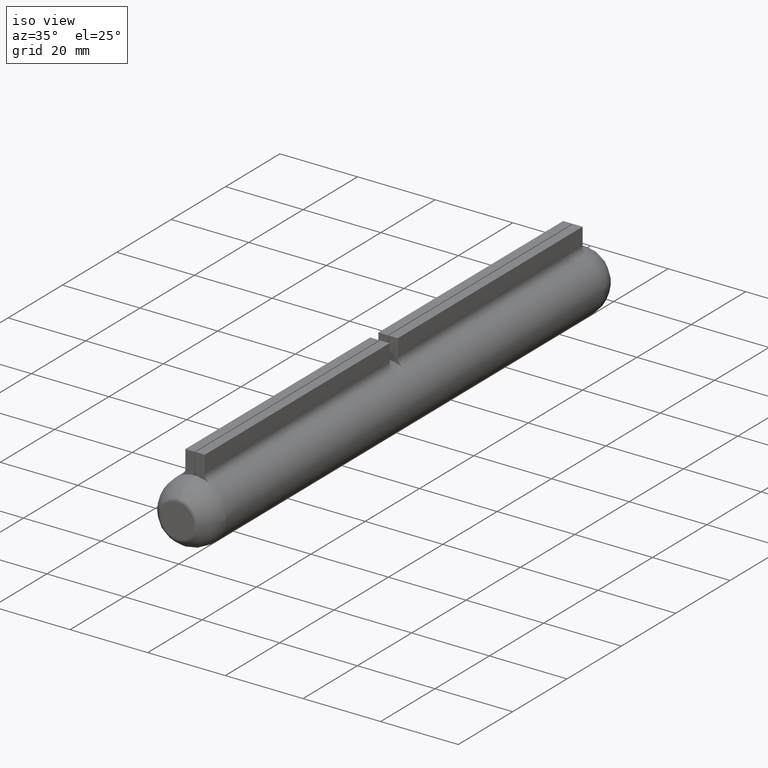
[diagram: clean part render]
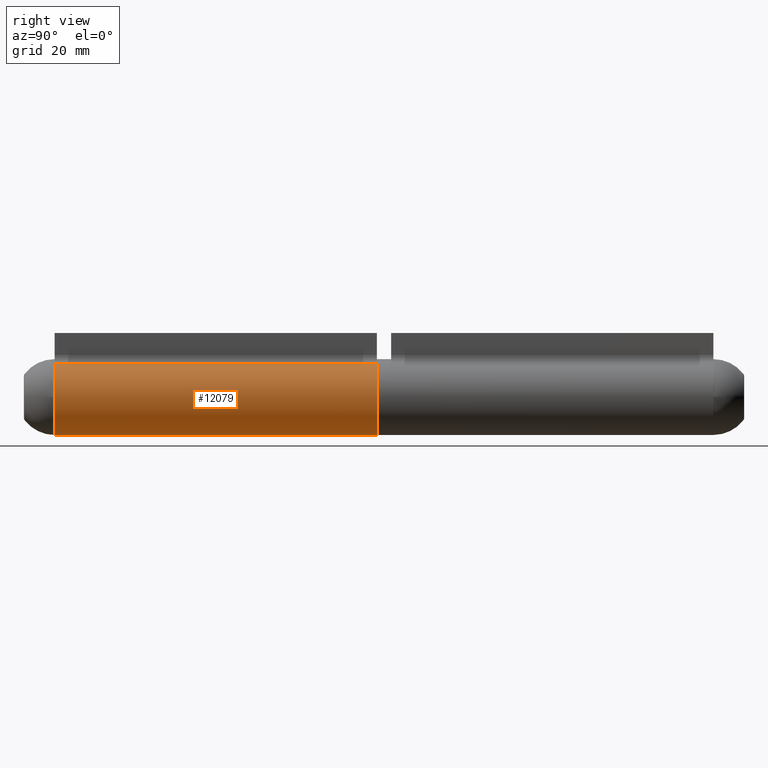
[diagram: tour spotlight — one face highlighted and labeled with its STEP entity id]
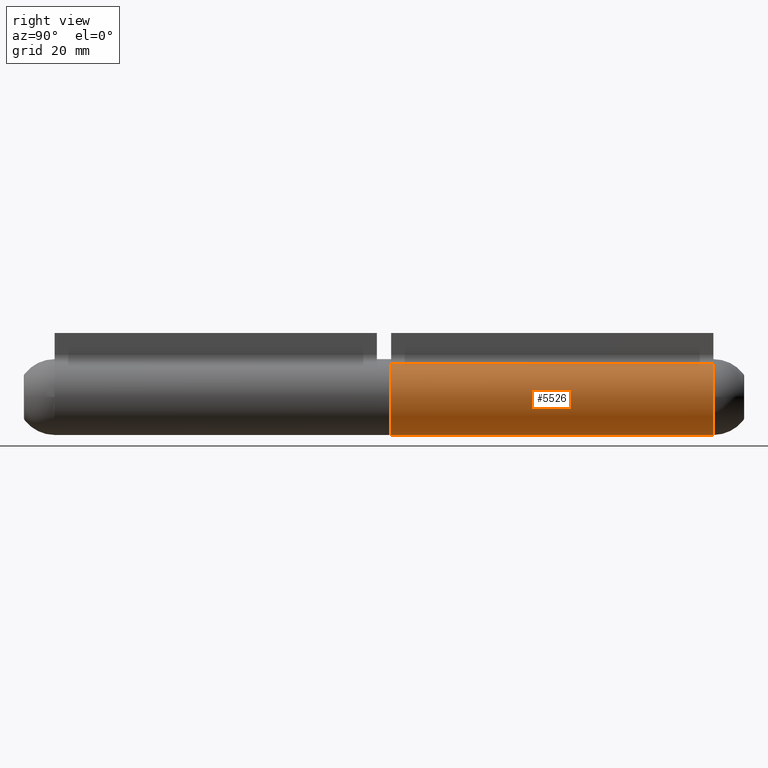
[diagram: tour spotlight — one face highlighted and labeled with its STEP entity id]
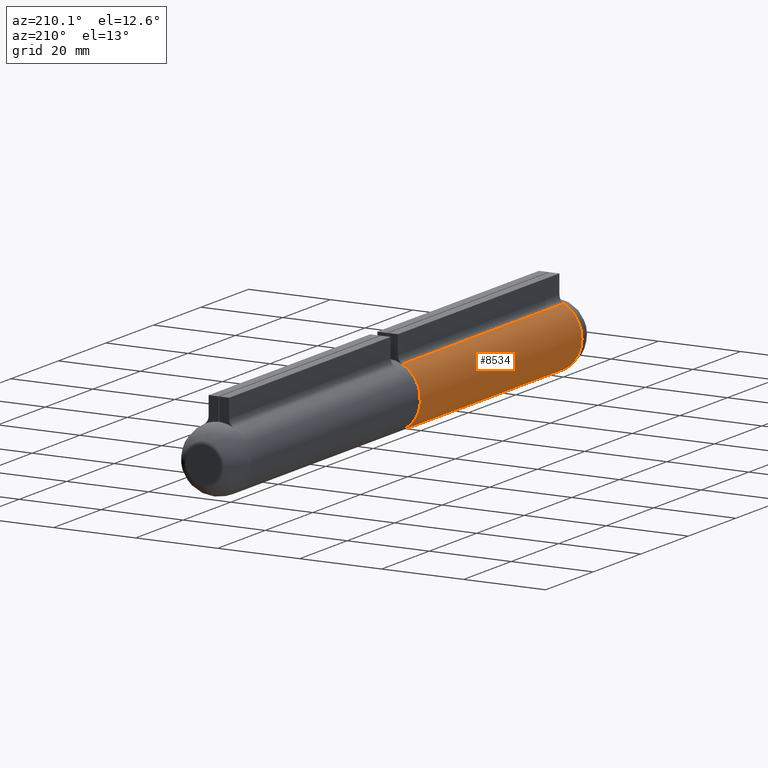
[diagram: tour spotlight — one face highlighted and labeled with its STEP entity id]
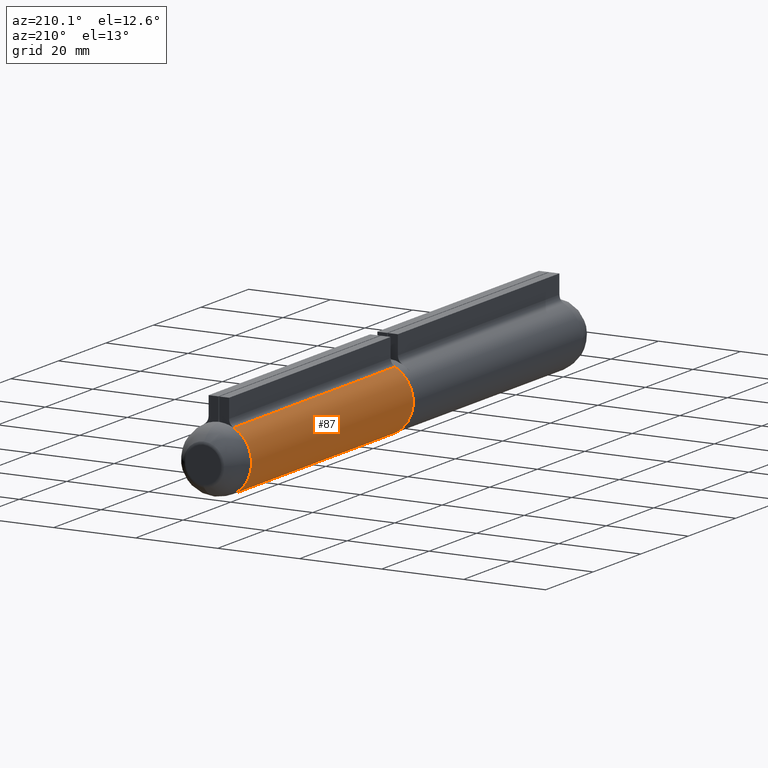
[diagram: tour spotlight — one face highlighted and labeled with its STEP entity id]
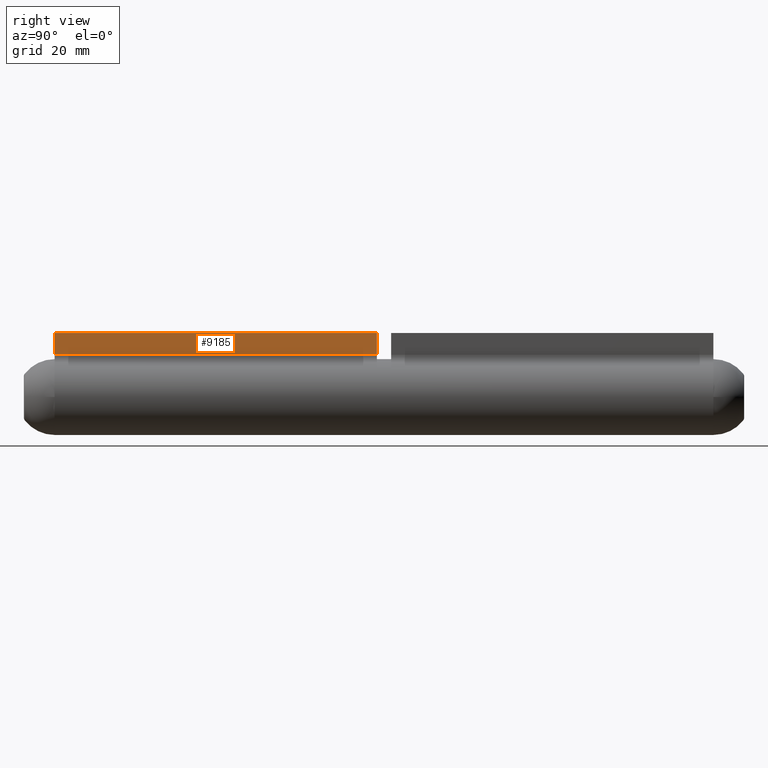
[diagram: tour spotlight — one face highlighted and labeled with its STEP entity id]
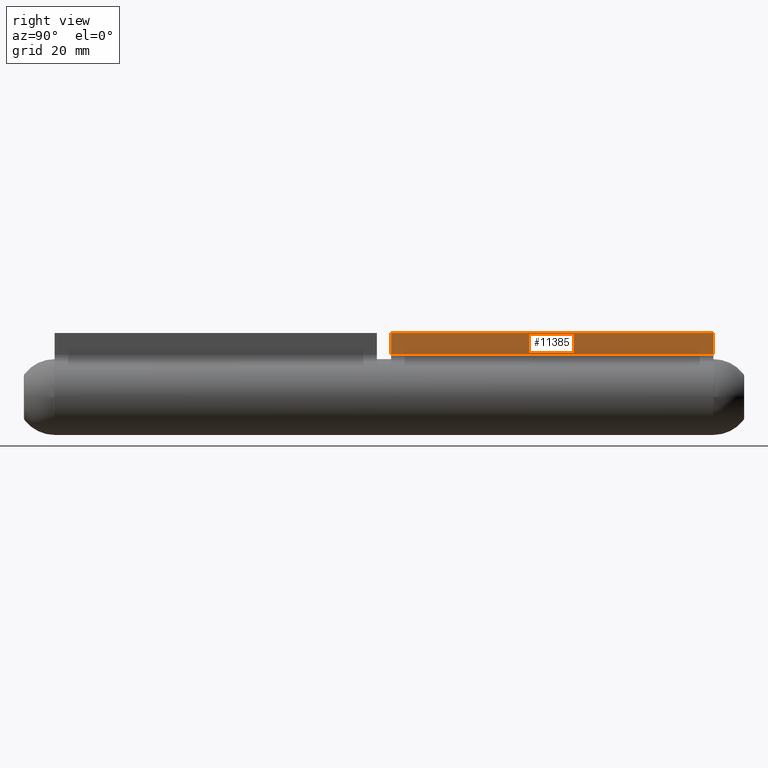
[diagram: tour spotlight — one face highlighted and labeled with its STEP entity id]
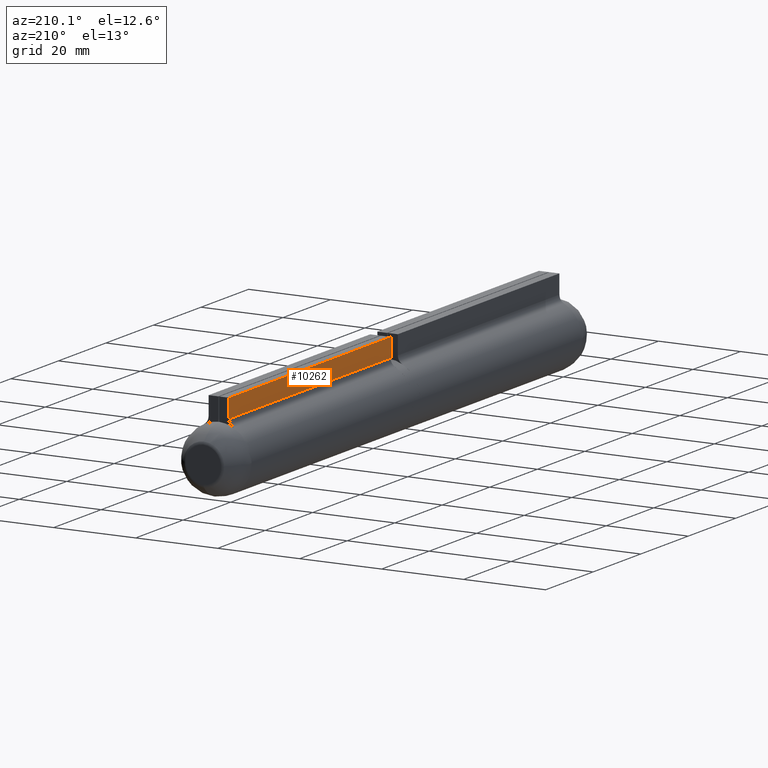
[diagram: tour spotlight — one face highlighted and labeled with its STEP entity id]
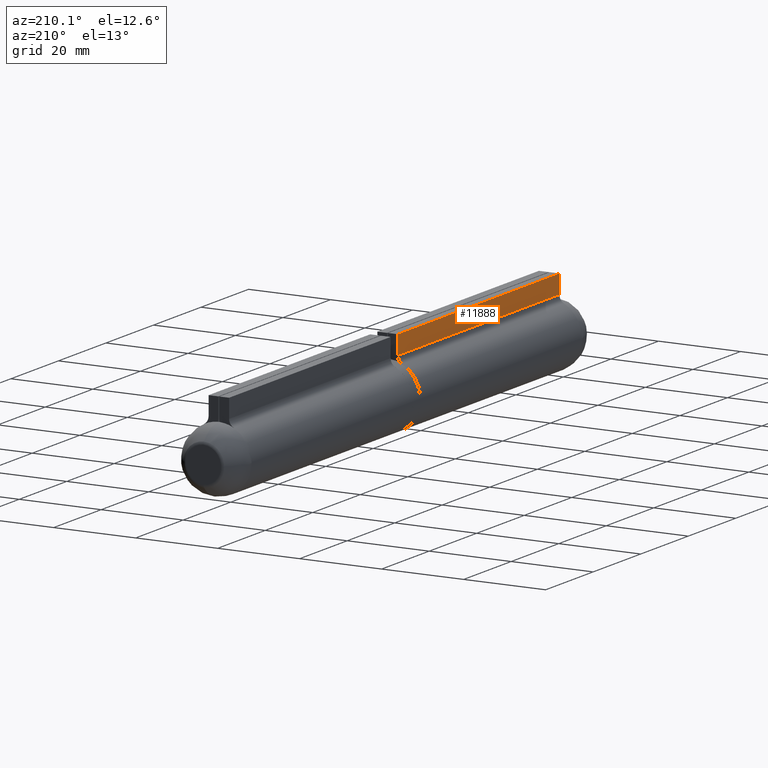
[diagram: tour spotlight — one face highlighted and labeled with its STEP entity id]
A machine part: a face-by-face anatomy tour. The part has 280 B-rep faces; the first image is the clean iso view, then the 8 largest visible faces are spotlighted one at a time (largest first), each with its STEP entity span.

Face 1 — right view, entity #12079. In plain terms, the highlighted cylindrical surface (partial cylindrical patch) has radius 8 mm, axis along (-0, -1, -0).
Definition (entity closure, byte-faithful):
#1317 = CARTESIAN_POINT ( 'NONE',  ( 0.000000000000000000, 34.00000000000000000, -7.999999999999998224 ) ) ;
#1640 = DIRECTION ( 'NONE',  ( 0.000000000000000000, 0.000000000000000000, -1.000000000000000000 ) ) ;
#1730 = VERTEX_POINT ( 'NONE', #11850 ) ;
#1923 = EDGE_LOOP ( 'NONE', ( #5000, #8132, #10654, #12706 ) ) ;
#3203 = EDGE_CURVE ( 'NONE', #1730, #7062, #5394, .T. ) ;
#3693 = CARTESIAN_POINT ( 'NONE',  ( 0.000000000000000000, 34.00000000000000000, 0.000000000000000000 ) ) ;
#3753 = DIRECTION ( 'NONE',  ( -0.000000000000000000, -1.000000000000000000, -0.000000000000000000 ) ) ;
#3789 = DIRECTION ( 'NONE',  ( -0.000000000000000000, -1.000000000000000000, -0.000000000000000000 ) ) ;
#3979 = LINE ( 'NONE', #10690, #5047 ) ;
#4450 = LINE ( 'NONE', #4731, #4927 ) ;
#4677 = CARTESIAN_POINT ( 'NONE',  ( 3.600000000000000089, 34.00000000000000000, 7.144228439796698638 ) ) ;
#4731 = CARTESIAN_POINT ( 'NONE',  ( 3.600000000000000089, 34.00000000000000000, 7.144228439796698638 ) ) ;
#4927 = VECTOR ( 'NONE', #3789, 1000.000000000000000 ) ;
#5000 = ORIENTED_EDGE ( 'NONE', *, *, #12190, .F. ) ;
#5047 = VECTOR ( 'NONE', #3753, 1000.000000000000000 ) ;
#5394 = CIRCLE ( 'NONE', #9211, 7.999999999999998224 ) ;
#5544 = DIRECTION ( 'NONE',  ( 0.000000000000000000, 0.000000000000000000, 1.000000000000000000 ) ) ;
#6123 = CARTESIAN_POINT ( 'NONE',  ( 0.000000000000000000, -34.00000000000000000, 0.000000000000000000 ) ) ;
#7062 = VERTEX_POINT ( 'NONE', #8725 ) ;
#8017 = CYLINDRICAL_SURFACE ( 'NONE', #8365, 7.999999999999998224 ) ;
#8132 = ORIENTED_EDGE ( 'NONE', *, *, #12448, .F. ) ;
#8365 = AXIS2_PLACEMENT_3D ( 'NONE', #11424, #8521, #1640 ) ;
#8420 = VERTEX_POINT ( 'NONE', #4677 ) ;
#8521 = DIRECTION ( 'NONE',  ( -0.000000000000000000, -1.000000000000000000, -0.000000000000000000 ) ) ;
#8675 = VERTEX_POINT ( 'NONE', #1317 ) ;
#8725 = CARTESIAN_POINT ( 'NONE',  ( 0.000000000000000000, -34.00000000000000000, -7.999999999999998224 ) ) ;
#9085 = CIRCLE ( 'NONE', #10563, 7.999999999999998224 ) ;
#9211 = AXIS2_PLACEMENT_3D ( 'NONE', #6123, #10923, #11925 ) ;
#9521 = DIRECTION ( 'NONE',  ( 0.000000000000000000, 1.000000000000000000, 0.000000000000000000 ) ) ;
#10563 = AXIS2_PLACEMENT_3D ( 'NONE', #3693, #9521, #5544 ) ;
#10654 = ORIENTED_EDGE ( 'NONE', *, *, #10925, .T. ) ;
#10690 = CARTESIAN_POINT ( 'NONE',  ( 0.000000000000000000, 34.00000000000000000, -7.999999999999998224 ) ) ;
#10923 = DIRECTION ( 'NONE',  ( 0.000000000000000000, 1.000000000000000000, 0.000000000000000000 ) ) ;
#10925 = EDGE_CURVE ( 'NONE', #8420, #1730, #4450, .T. ) ;
#10926 = FACE_OUTER_BOUND ( 'NONE', #1923, .T. ) ;
#11424 = CARTESIAN_POINT ( 'NONE',  ( 0.000000000000000000, 34.00000000000000000, 0.000000000000000000 ) ) ;
#11850 = CARTESIAN_POINT ( 'NONE',  ( 3.600000000000000089, -34.00000000000000000, 7.144228439796698638 ) ) ;
#11925 = DIRECTION ( 'NONE',  ( 0.000000000000000000, 0.000000000000000000, 1.000000000000000000 ) ) ;
#12079 = ADVANCED_FACE ( 'NONE', ( #10926 ), #8017, .T. ) ;
#12190 = EDGE_CURVE ( 'NONE', #8675, #7062, #3979, .T. ) ;
#12448 = EDGE_CURVE ( 'NONE', #8420, #8675, #9085, .T. ) ;
#12706 = ORIENTED_EDGE ( 'NONE', *, *, #3203, .T. ) ;

Face 2 — right view, entity #5526. In plain terms, the highlighted cylindrical surface (partial cylindrical patch) has radius 8 mm, axis along (-0, -1, -0).
Definition (entity closure, byte-faithful):
#41 = CIRCLE ( 'NONE', #7983, 7.999999999999998224 ) ;
#110 = CARTESIAN_POINT ( 'NONE',  ( 3.600000000000000089, 34.00000000000000000, 7.144228439796698638 ) ) ;
#111 = EDGE_CURVE ( 'NONE', #10241, #561, #41, .T. ) ;
#165 = CARTESIAN_POINT ( 'NONE',  ( 0.000000000000000000, 34.00000000000000000, 0.000000000000000000 ) ) ;
#184 = ORIENTED_EDGE ( 'NONE', *, *, #11705, .T. ) ;
#561 = VERTEX_POINT ( 'NONE', #8555 ) ;
#717 = VECTOR ( 'NONE', #8956, 1000.000000000000000 ) ;
#872 = LINE ( 'NONE', #6856, #717 ) ;
#1079 = DIRECTION ( 'NONE',  ( -0.000000000000000000, -1.000000000000000000, -0.000000000000000000 ) ) ;
#1162 = DIRECTION ( 'NONE',  ( 0.000000000000000000, 0.000000000000000000, 1.000000000000000000 ) ) ;
#1333 = CARTESIAN_POINT ( 'NONE',  ( 3.600000000000000089, -34.00000000000000000, 7.144228439796698638 ) ) ;
#1744 = DIRECTION ( 'NONE',  ( 0.000000000000000000, 1.000000000000000000, 0.000000000000000000 ) ) ;
#1974 = CIRCLE ( 'NONE', #7925, 7.999999999999998224 ) ;
#2167 = VECTOR ( 'NONE', #10861, 1000.000000000000000 ) ;
#2467 = FACE_OUTER_BOUND ( 'NONE', #3504, .T. ) ;
#2526 = EDGE_CURVE ( 'NONE', #561, #8944, #3264, .T. ) ;
#2726 = CARTESIAN_POINT ( 'NONE',  ( 0.000000000000000000, -34.00000000000000000, 0.000000000000000000 ) ) ;
#3089 = DIRECTION ( 'NONE',  ( 0.000000000000000000, 0.000000000000000000, -1.000000000000000000 ) ) ;
#3264 = LINE ( 'NONE', #9877, #2167 ) ;
#3504 = EDGE_LOOP ( 'NONE', ( #6454, #7977, #184, #5536 ) ) ;
#4755 = DIRECTION ( 'NONE',  ( 0.000000000000000000, 0.000000000000000000, 1.000000000000000000 ) ) ;
#5526 = ADVANCED_FACE ( 'NONE', ( #2467 ), #10662, .T. ) ;
#5536 = ORIENTED_EDGE ( 'NONE', *, *, #9980, .T. ) ;
#5545 = AXIS2_PLACEMENT_3D ( 'NONE', #8041, #1079, #3089 ) ;
#6454 = ORIENTED_EDGE ( 'NONE', *, *, #2526, .F. ) ;
#6856 = CARTESIAN_POINT ( 'NONE',  ( 3.600000000000000089, 34.00000000000000000, 7.144228439796698638 ) ) ;
#6900 = VERTEX_POINT ( 'NONE', #1333 ) ;
#7925 = AXIS2_PLACEMENT_3D ( 'NONE', #2726, #1744, #4755 ) ;
#7977 = ORIENTED_EDGE ( 'NONE', *, *, #111, .F. ) ;
#7983 = AXIS2_PLACEMENT_3D ( 'NONE', #165, #8026, #1162 ) ;
#8026 = DIRECTION ( 'NONE',  ( 0.000000000000000000, 1.000000000000000000, 0.000000000000000000 ) ) ;
#8041 = CARTESIAN_POINT ( 'NONE',  ( 0.000000000000000000, 34.00000000000000000, 0.000000000000000000 ) ) ;
#8555 = CARTESIAN_POINT ( 'NONE',  ( 0.000000000000000000, 34.00000000000000000, -7.999999999999998224 ) ) ;
#8944 = VERTEX_POINT ( 'NONE', #11599 ) ;
#8956 = DIRECTION ( 'NONE',  ( -0.000000000000000000, -1.000000000000000000, -0.000000000000000000 ) ) ;
#9877 = CARTESIAN_POINT ( 'NONE',  ( 0.000000000000000000, 34.00000000000000000, -7.999999999999998224 ) ) ;
#9980 = EDGE_CURVE ( 'NONE', #6900, #8944, #1974, .T. ) ;
#10241 = VERTEX_POINT ( 'NONE', #110 ) ;
#10662 = CYLINDRICAL_SURFACE ( 'NONE', #5545, 7.999999999999998224 ) ;
#10861 = DIRECTION ( 'NONE',  ( -0.000000000000000000, -1.000000000000000000, -0.000000000000000000 ) ) ;
#11599 = CARTESIAN_POINT ( 'NONE',  ( 0.000000000000000000, -34.00000000000000000, -7.999999999999998224 ) ) ;
#11705 = EDGE_CURVE ( 'NONE', #10241, #6900, #872, .T. ) ;

Face 3 — auxiliary view, entity #8534. In plain terms, the highlighted cylindrical surface (partial cylindrical patch) has radius 8 mm, axis along (-0, -1, -0).
Definition (entity closure, byte-faithful):
#154 = DIRECTION ( 'NONE',  ( 0.000000000000000000, 0.000000000000000000, 1.000000000000000000 ) ) ;
#567 = VECTOR ( 'NONE', #11546, 1000.000000000000000 ) ;
#1317 = CARTESIAN_POINT ( 'NONE',  ( 0.000000000000000000, 34.00000000000000000, -7.999999999999998224 ) ) ;
#1459 = CARTESIAN_POINT ( 'NONE',  ( -3.599999999999998757, -34.00000000000000000, 7.144228439796700414 ) ) ;
#2852 = VERTEX_POINT ( 'NONE', #9355 ) ;
#2926 = DIRECTION ( 'NONE',  ( 0.000000000000000000, 0.000000000000000000, 1.000000000000000000 ) ) ;
#3753 = DIRECTION ( 'NONE',  ( -0.000000000000000000, -1.000000000000000000, -0.000000000000000000 ) ) ;
#3792 = AXIS2_PLACEMENT_3D ( 'NONE', #11010, #6115, #154 ) ;
#3979 = LINE ( 'NONE', #10690, #5047 ) ;
#4285 = ORIENTED_EDGE ( 'NONE', *, *, #8672, .F. ) ;
#4331 = FACE_OUTER_BOUND ( 'NONE', #8909, .T. ) ;
#4486 = AXIS2_PLACEMENT_3D ( 'NONE', #7916, #11778, #2926 ) ;
#5047 = VECTOR ( 'NONE', #3753, 1000.000000000000000 ) ;
#5107 = CYLINDRICAL_SURFACE ( 'NONE', #9538, 7.999999999999998224 ) ;
#5887 = CIRCLE ( 'NONE', #4486, 7.999999999999998224 ) ;
#6115 = DIRECTION ( 'NONE',  ( 0.000000000000000000, 1.000000000000000000, 0.000000000000000000 ) ) ;
#6861 = DIRECTION ( 'NONE',  ( -0.000000000000000000, -1.000000000000000000, -0.000000000000000000 ) ) ;
#7062 = VERTEX_POINT ( 'NONE', #8725 ) ;
#7471 = ORIENTED_EDGE ( 'NONE', *, *, #11095, .F. ) ;
#7722 = CARTESIAN_POINT ( 'NONE',  ( -3.599999999999998757, 34.00000000000000000, 7.144228439796700414 ) ) ;
#7890 = DIRECTION ( 'NONE',  ( 0.000000000000000000, 0.000000000000000000, -1.000000000000000000 ) ) ;
#7916 = CARTESIAN_POINT ( 'NONE',  ( 0.000000000000000000, 34.00000000000000000, 0.000000000000000000 ) ) ;
#8534 = ADVANCED_FACE ( 'NONE', ( #4331 ), #5107, .T. ) ;
#8547 = ORIENTED_EDGE ( 'NONE', *, *, #11843, .T. ) ;
#8672 = EDGE_CURVE ( 'NONE', #8675, #2852, #5887, .T. ) ;
#8675 = VERTEX_POINT ( 'NONE', #1317 ) ;
#8725 = CARTESIAN_POINT ( 'NONE',  ( 0.000000000000000000, -34.00000000000000000, -7.999999999999998224 ) ) ;
#8832 = CARTESIAN_POINT ( 'NONE',  ( 0.000000000000000000, 34.00000000000000000, 0.000000000000000000 ) ) ;
#8909 = EDGE_LOOP ( 'NONE', ( #4285, #11025, #8547, #7471 ) ) ;
#9355 = CARTESIAN_POINT ( 'NONE',  ( -3.599999999999998757, 34.00000000000000000, 7.144228439796700414 ) ) ;
#9538 = AXIS2_PLACEMENT_3D ( 'NONE', #8832, #6861, #7890 ) ;
#9708 = LINE ( 'NONE', #7722, #567 ) ;
#10690 = CARTESIAN_POINT ( 'NONE',  ( 0.000000000000000000, 34.00000000000000000, -7.999999999999998224 ) ) ;
#10715 = VERTEX_POINT ( 'NONE', #1459 ) ;
#11010 = CARTESIAN_POINT ( 'NONE',  ( 0.000000000000000000, -34.00000000000000000, 0.000000000000000000 ) ) ;
#11025 = ORIENTED_EDGE ( 'NONE', *, *, #12190, .T. ) ;
#11095 = EDGE_CURVE ( 'NONE', #2852, #10715, #9708, .T. ) ;
#11546 = DIRECTION ( 'NONE',  ( -0.000000000000000000, -1.000000000000000000, -0.000000000000000000 ) ) ;
#11778 = DIRECTION ( 'NONE',  ( 0.000000000000000000, 1.000000000000000000, 0.000000000000000000 ) ) ;
#11843 = EDGE_CURVE ( 'NONE', #7062, #10715, #12759, .T. ) ;
#12190 = EDGE_CURVE ( 'NONE', #8675, #7062, #3979, .T. ) ;
#12759 = CIRCLE ( 'NONE', #3792, 7.999999999999998224 ) ;

Face 4 — auxiliary view, entity #87. In plain terms, the highlighted cylindrical surface (partial cylindrical patch) has radius 8 mm, axis along (-0, -1, -0).
Definition (entity closure, byte-faithful):
#87 = ADVANCED_FACE ( 'NONE', ( #6556 ), #2678, .T. ) ;
#561 = VERTEX_POINT ( 'NONE', #8555 ) ;
#1063 = EDGE_LOOP ( 'NONE', ( #4235, #8550, #5017, #7978 ) ) ;
#1737 = DIRECTION ( 'NONE',  ( 0.000000000000000000, 1.000000000000000000, 0.000000000000000000 ) ) ;
#1861 = CARTESIAN_POINT ( 'NONE',  ( -3.599999999999999201, 34.00000000000000000, 7.144228439796701302 ) ) ;
#2167 = VECTOR ( 'NONE', #10861, 1000.000000000000000 ) ;
#2271 = DIRECTION ( 'NONE',  ( 0.000000000000000000, 1.000000000000000000, 0.000000000000000000 ) ) ;
#2526 = EDGE_CURVE ( 'NONE', #561, #8944, #3264, .T. ) ;
#2678 = CYLINDRICAL_SURFACE ( 'NONE', #3553, 7.999999999999998224 ) ;
#3239 = CARTESIAN_POINT ( 'NONE',  ( 0.000000000000000000, 34.00000000000000000, 0.000000000000000000 ) ) ;
#3264 = LINE ( 'NONE', #9877, #2167 ) ;
#3272 = LINE ( 'NONE', #1861, #5573 ) ;
#3553 = AXIS2_PLACEMENT_3D ( 'NONE', #12016, #9182, #5101 ) ;
#4083 = EDGE_CURVE ( 'NONE', #561, #12667, #5298, .T. ) ;
#4235 = ORIENTED_EDGE ( 'NONE', *, *, #4083, .F. ) ;
#5017 = ORIENTED_EDGE ( 'NONE', *, *, #10398, .T. ) ;
#5068 = CARTESIAN_POINT ( 'NONE',  ( -3.599999999999999201, 34.00000000000000000, 7.144228439796701302 ) ) ;
#5101 = DIRECTION ( 'NONE',  ( 0.000000000000000000, 0.000000000000000000, -1.000000000000000000 ) ) ;
#5298 = CIRCLE ( 'NONE', #6306, 7.999999999999998224 ) ;
#5573 = VECTOR ( 'NONE', #6106, 1000.000000000000000 ) ;
#5735 = DIRECTION ( 'NONE',  ( 0.000000000000000000, 0.000000000000000000, 1.000000000000000000 ) ) ;
#5942 = EDGE_CURVE ( 'NONE', #12667, #12704, #3272, .T. ) ;
#6106 = DIRECTION ( 'NONE',  ( -0.000000000000000000, -1.000000000000000000, -0.000000000000000000 ) ) ;
#6306 = AXIS2_PLACEMENT_3D ( 'NONE', #3239, #2271, #10144 ) ;
#6556 = FACE_OUTER_BOUND ( 'NONE', #1063, .T. ) ;
#6814 = CIRCLE ( 'NONE', #10356, 7.999999999999998224 ) ;
#7978 = ORIENTED_EDGE ( 'NONE', *, *, #5942, .F. ) ;
#8036 = CARTESIAN_POINT ( 'NONE',  ( -3.599999999999999201, -34.00000000000000000, 7.144228439796701302 ) ) ;
#8550 = ORIENTED_EDGE ( 'NONE', *, *, #2526, .T. ) ;
#8555 = CARTESIAN_POINT ( 'NONE',  ( 0.000000000000000000, 34.00000000000000000, -7.999999999999998224 ) ) ;
#8944 = VERTEX_POINT ( 'NONE', #11599 ) ;
#9182 = DIRECTION ( 'NONE',  ( -0.000000000000000000, -1.000000000000000000, -0.000000000000000000 ) ) ;
#9877 = CARTESIAN_POINT ( 'NONE',  ( 0.000000000000000000, 34.00000000000000000, -7.999999999999998224 ) ) ;
#10144 = DIRECTION ( 'NONE',  ( 0.000000000000000000, 0.000000000000000000, 1.000000000000000000 ) ) ;
#10356 = AXIS2_PLACEMENT_3D ( 'NONE', #12715, #1737, #5735 ) ;
#10398 = EDGE_CURVE ( 'NONE', #8944, #12704, #6814, .T. ) ;
#10861 = DIRECTION ( 'NONE',  ( -0.000000000000000000, -1.000000000000000000, -0.000000000000000000 ) ) ;
#11599 = CARTESIAN_POINT ( 'NONE',  ( 0.000000000000000000, -34.00000000000000000, -7.999999999999998224 ) ) ;
#12016 = CARTESIAN_POINT ( 'NONE',  ( 0.000000000000000000, 34.00000000000000000, 0.000000000000000000 ) ) ;
#12667 = VERTEX_POINT ( 'NONE', #5068 ) ;
#12704 = VERTEX_POINT ( 'NONE', #8036 ) ;
#12715 = CARTESIAN_POINT ( 'NONE',  ( 0.000000000000000000, -34.00000000000000000, 0.000000000000000000 ) ) ;

Face 5 — right view, entity #9185. In plain terms, the highlighted planar face has unit normal (-1, 0, 0).
Definition (entity closure, byte-faithful):
#269 = EDGE_CURVE ( 'NONE', #3763, #6172, #9941, .T. ) ;
#545 = VECTOR ( 'NONE', #6173, 1000.000000000000000 ) ;
#968 = VERTEX_POINT ( 'NONE', #2288 ) ;
#1045 = CARTESIAN_POINT ( 'NONE',  ( 2.500000000000001776, 34.00000000000000000, 13.49999999999999822 ) ) ;
#2043 = DIRECTION ( 'NONE',  ( -1.000000000000000000, 0.000000000000000000, 1.898065508097927887E-16 ) ) ;
#2288 = CARTESIAN_POINT ( 'NONE',  ( 2.500000000000000444, 34.00000000000000000, 8.930285549745875073 ) ) ;
#2418 = AXIS2_PLACEMENT_3D ( 'NONE', #1045, #2043, #7105 ) ;
#2429 = CARTESIAN_POINT ( 'NONE',  ( 2.500000000000000444, 34.00000000000000000, 8.930285549745875073 ) ) ;
#3093 = VECTOR ( 'NONE', #5584, 1000.000000000000000 ) ;
#3609 = VERTEX_POINT ( 'NONE', #4750 ) ;
#3708 = CARTESIAN_POINT ( 'NONE',  ( 2.500000000000001776, 34.00000000000000000, 13.49999999999999822 ) ) ;
#3763 = VERTEX_POINT ( 'NONE', #3708 ) ;
#3975 = ORIENTED_EDGE ( 'NONE', *, *, #12733, .T. ) ;
#4010 = PLANE ( 'NONE',  #2418 ) ;
#4469 = CARTESIAN_POINT ( 'NONE',  ( 2.500000000000001776, -34.00000000000000000, 13.49999999999999822 ) ) ;
#4615 = LINE ( 'NONE', #2429, #10477 ) ;
#4750 = CARTESIAN_POINT ( 'NONE',  ( 2.500000000000000444, -34.00000000000000000, 8.930285549745875073 ) ) ;
#5584 = DIRECTION ( 'NONE',  ( -1.898065508097927887E-16, 0.000000000000000000, -1.000000000000000000 ) ) ;
#6036 = FACE_OUTER_BOUND ( 'NONE', #12583, .T. ) ;
#6109 = ORIENTED_EDGE ( 'NONE', *, *, #269, .T. ) ;
#6172 = VERTEX_POINT ( 'NONE', #4469 ) ;
#6173 = DIRECTION ( 'NONE',  ( -1.898065508097927887E-16, 0.000000000000000000, -1.000000000000000000 ) ) ;
#7105 = DIRECTION ( 'NONE',  ( 1.898065508097927887E-16, 0.000000000000000000, 1.000000000000000000 ) ) ;
#7339 = VECTOR ( 'NONE', #8743, 1000.000000000000000 ) ;
#8053 = ORIENTED_EDGE ( 'NONE', *, *, #10732, .F. ) ;
#8319 = LINE ( 'NONE', #11158, #545 ) ;
#8483 = ORIENTED_EDGE ( 'NONE', *, *, #9394, .F. ) ;
#8743 = DIRECTION ( 'NONE',  ( -0.000000000000000000, -1.000000000000000000, -0.000000000000000000 ) ) ;
#9185 = ADVANCED_FACE ( 'NONE', ( #6036 ), #4010, .F. ) ;
#9359 = DIRECTION ( 'NONE',  ( -0.000000000000000000, -1.000000000000000000, -0.000000000000000000 ) ) ;
#9394 = EDGE_CURVE ( 'NONE', #3763, #968, #9726, .T. ) ;
#9726 = LINE ( 'NONE', #11545, #3093 ) ;
#9941 = LINE ( 'NONE', #12615, #7339 ) ;
#10477 = VECTOR ( 'NONE', #9359, 1000.000000000000000 ) ;
#10732 = EDGE_CURVE ( 'NONE', #968, #3609, #4615, .T. ) ;
#11158 = CARTESIAN_POINT ( 'NONE',  ( 2.500000000000001776, -34.00000000000000000, 13.49999999999999822 ) ) ;
#11545 = CARTESIAN_POINT ( 'NONE',  ( 2.500000000000001776, 34.00000000000000000, 13.49999999999999822 ) ) ;
#12583 = EDGE_LOOP ( 'NONE', ( #3975, #8053, #8483, #6109 ) ) ;
#12615 = CARTESIAN_POINT ( 'NONE',  ( 2.500000000000001776, 34.00000000000000000, 13.49999999999999822 ) ) ;
#12733 = EDGE_CURVE ( 'NONE', #6172, #3609, #8319, .T. ) ;

Face 6 — right view, entity #11385. In plain terms, the highlighted planar face has unit normal (-1, 0, -0).
Definition (entity closure, byte-faithful):
#417 = DIRECTION ( 'NONE',  ( -9.490327540489639436E-17, 0.000000000000000000, 1.000000000000000000 ) ) ;
#1387 = EDGE_CURVE ( 'NONE', #6733, #4557, #1702, .T. ) ;
#1702 = LINE ( 'NONE', #2909, #9316 ) ;
#2292 = PLANE ( 'NONE',  #8113 ) ;
#2566 = LINE ( 'NONE', #10197, #3209 ) ;
#2909 = CARTESIAN_POINT ( 'NONE',  ( 2.500000000000001332, 34.00000000000000000, 13.49999999999999822 ) ) ;
#3209 = VECTOR ( 'NONE', #10163, 1000.000000000000000 ) ;
#3237 = CARTESIAN_POINT ( 'NONE',  ( 2.500000000000000888, -34.00000000000000000, 8.930285549745875073 ) ) ;
#3304 = ORIENTED_EDGE ( 'NONE', *, *, #5185, .T. ) ;
#3491 = CARTESIAN_POINT ( 'NONE',  ( 2.500000000000000888, 34.00000000000000000, 8.930285549745875073 ) ) ;
#4304 = FACE_OUTER_BOUND ( 'NONE', #7659, .T. ) ;
#4557 = VERTEX_POINT ( 'NONE', #11405 ) ;
#4748 = CARTESIAN_POINT ( 'NONE',  ( 2.500000000000001332, -34.00000000000000000, 13.49999999999999822 ) ) ;
#4754 = LINE ( 'NONE', #3491, #5674 ) ;
#4764 = DIRECTION ( 'NONE',  ( 9.490327540489639436E-17, 0.000000000000000000, -1.000000000000000000 ) ) ;
#5126 = LINE ( 'NONE', #6392, #10679 ) ;
#5185 = EDGE_CURVE ( 'NONE', #6733, #10351, #5126, .T. ) ;
#5674 = VECTOR ( 'NONE', #10389, 1000.000000000000000 ) ;
#6108 = VERTEX_POINT ( 'NONE', #3237 ) ;
#6392 = CARTESIAN_POINT ( 'NONE',  ( 2.500000000000001332, 34.00000000000000000, 13.49999999999999822 ) ) ;
#6733 = VERTEX_POINT ( 'NONE', #9589 ) ;
#6846 = ORIENTED_EDGE ( 'NONE', *, *, #12761, .T. ) ;
#7659 = EDGE_LOOP ( 'NONE', ( #6846, #12358, #7943, #3304 ) ) ;
#7943 = ORIENTED_EDGE ( 'NONE', *, *, #1387, .F. ) ;
#8113 = AXIS2_PLACEMENT_3D ( 'NONE', #10123, #10282, #417 ) ;
#8230 = DIRECTION ( 'NONE',  ( -0.000000000000000000, -1.000000000000000000, -0.000000000000000000 ) ) ;
#9316 = VECTOR ( 'NONE', #4764, 1000.000000000000000 ) ;
#9589 = CARTESIAN_POINT ( 'NONE',  ( 2.500000000000001332, 34.00000000000000000, 13.49999999999999822 ) ) ;
#10123 = CARTESIAN_POINT ( 'NONE',  ( 2.500000000000001332, 34.00000000000000000, 13.49999999999999822 ) ) ;
#10163 = DIRECTION ( 'NONE',  ( 9.490327540489639436E-17, 0.000000000000000000, -1.000000000000000000 ) ) ;
#10197 = CARTESIAN_POINT ( 'NONE',  ( 2.500000000000001332, -34.00000000000000000, 13.49999999999999822 ) ) ;
#10282 = DIRECTION ( 'NONE',  ( -1.000000000000000000, 0.000000000000000000, -9.490327540489639436E-17 ) ) ;
#10351 = VERTEX_POINT ( 'NONE', #4748 ) ;
#10389 = DIRECTION ( 'NONE',  ( -0.000000000000000000, -1.000000000000000000, -0.000000000000000000 ) ) ;
#10679 = VECTOR ( 'NONE', #8230, 1000.000000000000000 ) ;
#11385 = ADVANCED_FACE ( 'NONE', ( #4304 ), #2292, .F. ) ;
#11405 = CARTESIAN_POINT ( 'NONE',  ( 2.500000000000000888, 34.00000000000000000, 8.930285549745875073 ) ) ;
#12129 = EDGE_CURVE ( 'NONE', #4557, #6108, #4754, .T. ) ;
#12358 = ORIENTED_EDGE ( 'NONE', *, *, #12129, .F. ) ;
#12761 = EDGE_CURVE ( 'NONE', #10351, #6108, #2566, .T. ) ;

Face 7 — auxiliary view, entity #10262. In plain terms, the highlighted planar face has unit normal (1, 0, -0).
Definition (entity closure, byte-faithful):
#64 = VERTEX_POINT ( 'NONE', #6198 ) ;
#308 = EDGE_CURVE ( 'NONE', #10397, #340, #8883, .T. ) ;
#340 = VERTEX_POINT ( 'NONE', #11688 ) ;
#622 = DIRECTION ( 'NONE',  ( 1.000000000000000000, 0.000000000000000000, -2.847098262146891831E-16 ) ) ;
#886 = CARTESIAN_POINT ( 'NONE',  ( -2.499999999999999112, -34.00000000000000000, 8.930285549745875073 ) ) ;
#924 = VECTOR ( 'NONE', #10133, 1000.000000000000000 ) ;
#1514 = DIRECTION ( 'NONE',  ( -2.847098262146891831E-16, 0.000000000000000000, -1.000000000000000000 ) ) ;
#2213 = VECTOR ( 'NONE', #5680, 1000.000000000000000 ) ;
#2216 = EDGE_CURVE ( 'NONE', #10269, #340, #7917, .T. ) ;
#2353 = DIRECTION ( 'NONE',  ( -0.000000000000000000, -1.000000000000000000, -0.000000000000000000 ) ) ;
#2666 = CARTESIAN_POINT ( 'NONE',  ( -2.499999999999999112, -34.00000000000000000, 8.930285549745875073 ) ) ;
#3583 = CARTESIAN_POINT ( 'NONE',  ( -2.499999999999999112, 34.00000000000000000, 8.930285549745875073 ) ) ;
#4002 = DIRECTION ( 'NONE',  ( -0.000000000000000000, -1.000000000000000000, -0.000000000000000000 ) ) ;
#4025 = VECTOR ( 'NONE', #2353, 1000.000000000000000 ) ;
#4206 = LINE ( 'NONE', #12533, #6220 ) ;
#4762 = ORIENTED_EDGE ( 'NONE', *, *, #308, .T. ) ;
#5352 = EDGE_CURVE ( 'NONE', #64, #10397, #4206, .T. ) ;
#5443 = ORIENTED_EDGE ( 'NONE', *, *, #7633, .F. ) ;
#5680 = DIRECTION ( 'NONE',  ( 2.847098262146891831E-16, 0.000000000000000000, 1.000000000000000000 ) ) ;
#6198 = CARTESIAN_POINT ( 'NONE',  ( -2.499999999999999112, 34.00000000000000000, 8.930285549745875073 ) ) ;
#6220 = VECTOR ( 'NONE', #4002, 1000.000000000000000 ) ;
#7103 = CARTESIAN_POINT ( 'NONE',  ( -2.499999999999999112, 34.00000000000000000, 8.930285549745875073 ) ) ;
#7633 = EDGE_CURVE ( 'NONE', #64, #10269, #8537, .T. ) ;
#7917 = LINE ( 'NONE', #10328, #4025 ) ;
#8189 = AXIS2_PLACEMENT_3D ( 'NONE', #3583, #622, #1514 ) ;
#8537 = LINE ( 'NONE', #7103, #924 ) ;
#8559 = ORIENTED_EDGE ( 'NONE', *, *, #5352, .T. ) ;
#8581 = PLANE ( 'NONE',  #8189 ) ;
#8883 = LINE ( 'NONE', #2666, #2213 ) ;
#8965 = FACE_OUTER_BOUND ( 'NONE', #11202, .T. ) ;
#9654 = ORIENTED_EDGE ( 'NONE', *, *, #2216, .F. ) ;
#10133 = DIRECTION ( 'NONE',  ( 2.847098262146891831E-16, 0.000000000000000000, 1.000000000000000000 ) ) ;
#10262 = ADVANCED_FACE ( 'NONE', ( #8965 ), #8581, .F. ) ;
#10269 = VERTEX_POINT ( 'NONE', #12044 ) ;
#10328 = CARTESIAN_POINT ( 'NONE',  ( -2.499999999999997780, 34.00000000000000000, 13.49999999999999822 ) ) ;
#10397 = VERTEX_POINT ( 'NONE', #886 ) ;
#11202 = EDGE_LOOP ( 'NONE', ( #4762, #9654, #5443, #8559 ) ) ;
#11688 = CARTESIAN_POINT ( 'NONE',  ( -2.499999999999997780, -34.00000000000000000, 13.49999999999999822 ) ) ;
#12044 = CARTESIAN_POINT ( 'NONE',  ( -2.499999999999997780, 34.00000000000000000, 13.49999999999999822 ) ) ;
#12533 = CARTESIAN_POINT ( 'NONE',  ( -2.499999999999999112, 34.00000000000000000, 8.930285549745875073 ) ) ;

Face 8 — auxiliary view, entity #11888. In plain terms, the highlighted planar face has unit normal (1, 0, 0).
Definition (entity closure, byte-faithful):
#204 = VERTEX_POINT ( 'NONE', #10386 ) ;
#255 = VECTOR ( 'NONE', #1274, 1000.000000000000000 ) ;
#370 = DIRECTION ( 'NONE',  ( 0.000000000000000000, 0.000000000000000000, -1.000000000000000000 ) ) ;
#1182 = DIRECTION ( 'NONE',  ( 0.000000000000000000, 0.000000000000000000, 1.000000000000000000 ) ) ;
#1274 = DIRECTION ( 'NONE',  ( 0.000000000000000000, 0.000000000000000000, 1.000000000000000000 ) ) ;
#1376 = VECTOR ( 'NONE', #2775, 1000.000000000000000 ) ;
#1435 = CARTESIAN_POINT ( 'NONE',  ( -2.499999999999998224, 34.00000000000000000, 8.930285549745875073 ) ) ;
#1447 = EDGE_CURVE ( 'NONE', #204, #8401, #2966, .T. ) ;
#1538 = VECTOR ( 'NONE', #1182, 1000.000000000000000 ) ;
#1739 = LINE ( 'NONE', #8437, #5471 ) ;
#1790 = FACE_OUTER_BOUND ( 'NONE', #7759, .T. ) ;
#2703 = VERTEX_POINT ( 'NONE', #7266 ) ;
#2775 = DIRECTION ( 'NONE',  ( -0.000000000000000000, -1.000000000000000000, -0.000000000000000000 ) ) ;
#2966 = LINE ( 'NONE', #11712, #1376 ) ;
#4282 = CARTESIAN_POINT ( 'NONE',  ( -2.499999999999998224, 34.00000000000000000, 8.930285549745875073 ) ) ;
#5471 = VECTOR ( 'NONE', #6390, 1000.000000000000000 ) ;
#6006 = LINE ( 'NONE', #1435, #255 ) ;
#6028 = EDGE_CURVE ( 'NONE', #2703, #8401, #9163, .T. ) ;
#6312 = DIRECTION ( 'NONE',  ( 1.000000000000000000, 0.000000000000000000, 0.000000000000000000 ) ) ;
#6390 = DIRECTION ( 'NONE',  ( -0.000000000000000000, -1.000000000000000000, -0.000000000000000000 ) ) ;
#7204 = CARTESIAN_POINT ( 'NONE',  ( -2.499999999999998224, 34.00000000000000000, 8.930285549745875073 ) ) ;
#7266 = CARTESIAN_POINT ( 'NONE',  ( -2.499999999999998224, -34.00000000000000000, 8.930285549745875073 ) ) ;
#7556 = VERTEX_POINT ( 'NONE', #7204 ) ;
#7759 = EDGE_LOOP ( 'NONE', ( #9551, #12219, #12523, #10116 ) ) ;
#7940 = EDGE_CURVE ( 'NONE', #7556, #2703, #1739, .T. ) ;
#8228 = CARTESIAN_POINT ( 'NONE',  ( -2.499999999999998224, -34.00000000000000000, 8.930285549745875073 ) ) ;
#8401 = VERTEX_POINT ( 'NONE', #12395 ) ;
#8437 = CARTESIAN_POINT ( 'NONE',  ( -2.499999999999998224, 34.00000000000000000, 8.930285549745875073 ) ) ;
#9163 = LINE ( 'NONE', #8228, #1538 ) ;
#9551 = ORIENTED_EDGE ( 'NONE', *, *, #6028, .T. ) ;
#9644 = AXIS2_PLACEMENT_3D ( 'NONE', #4282, #6312, #370 ) ;
#10012 = PLANE ( 'NONE',  #9644 ) ;
#10116 = ORIENTED_EDGE ( 'NONE', *, *, #7940, .T. ) ;
#10386 = CARTESIAN_POINT ( 'NONE',  ( -2.499999999999998224, 34.00000000000000000, 13.49999999999999822 ) ) ;
#11712 = CARTESIAN_POINT ( 'NONE',  ( -2.499999999999998224, 34.00000000000000000, 13.49999999999999822 ) ) ;
#11888 = ADVANCED_FACE ( 'NONE', ( #1790 ), #10012, .F. ) ;
#11976 = EDGE_CURVE ( 'NONE', #7556, #204, #6006, .T. ) ;
#12219 = ORIENTED_EDGE ( 'NONE', *, *, #1447, .F. ) ;
#12395 = CARTESIAN_POINT ( 'NONE',  ( -2.499999999999998224, -34.00000000000000000, 13.49999999999999822 ) ) ;
#12523 = ORIENTED_EDGE ( 'NONE', *, *, #11976, .F. ) ;